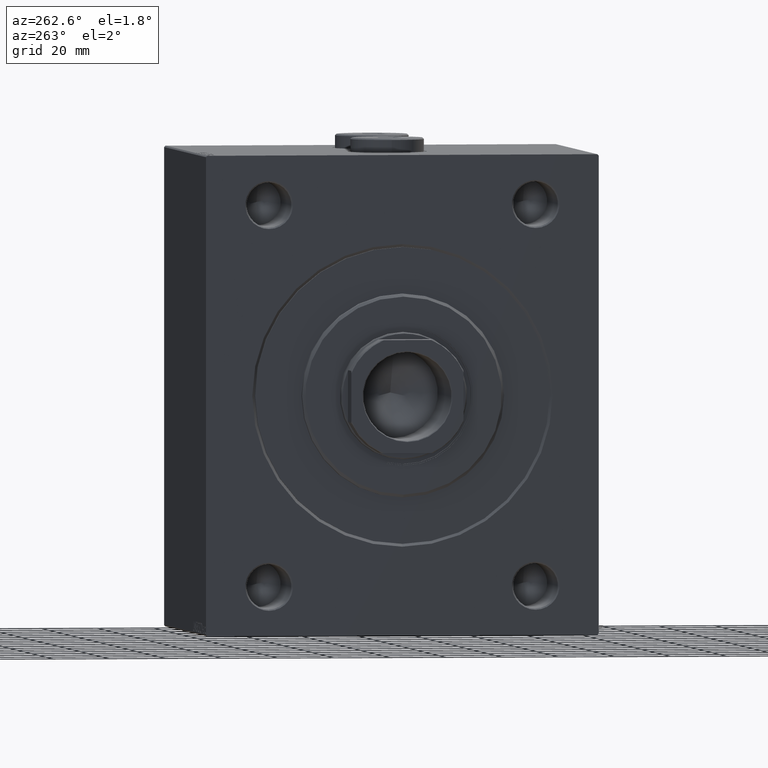
[diagram: clean part render]
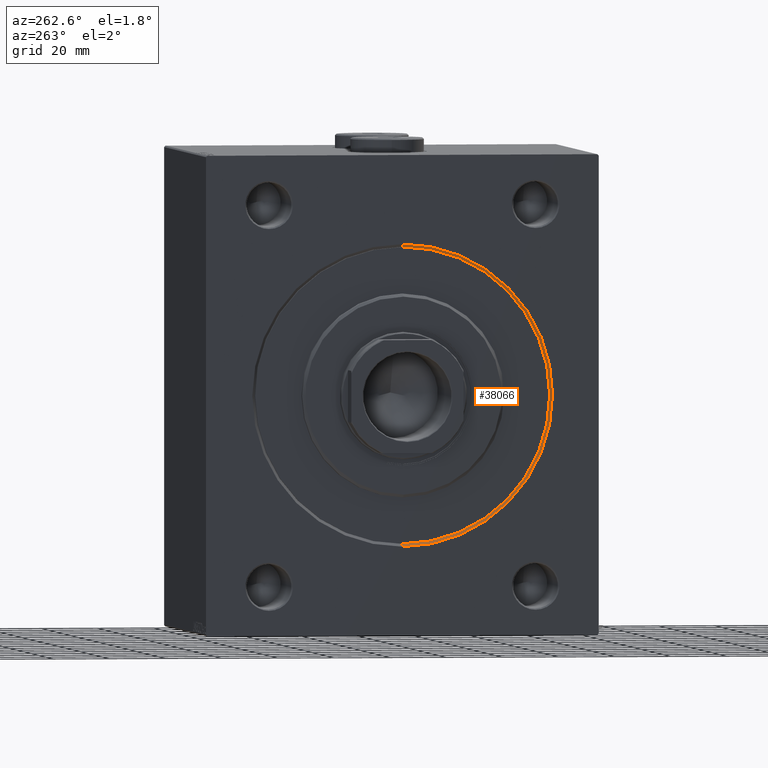
[diagram: same view with one face highlighted and labeled with its STEP entity id]
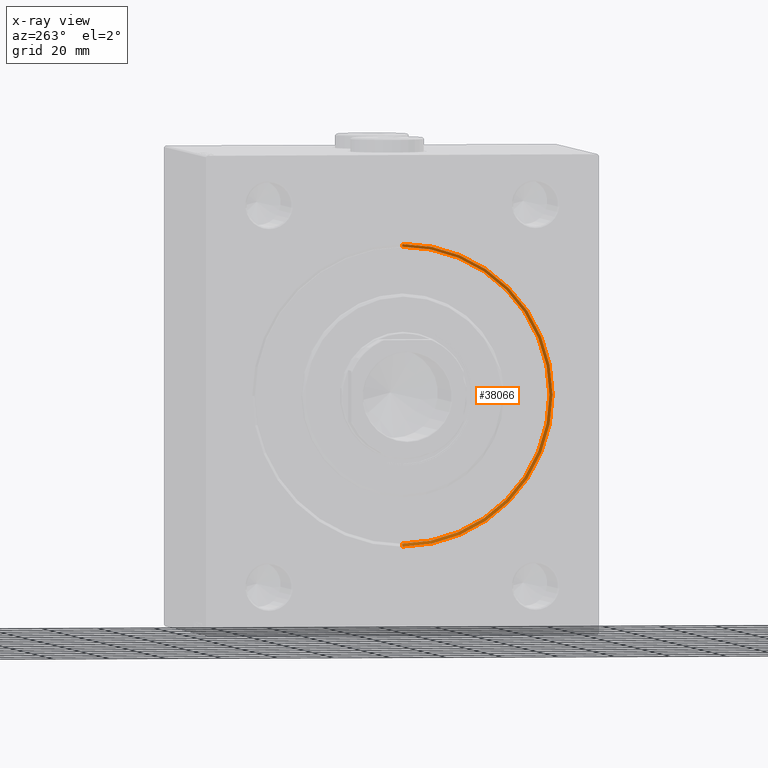
[diagram: x-ray of the same camera — body ghosted, the highlighted face saturated]
A machine part, auxiliary view. The second image highlights one B-rep face of the part: STEP entity #38066.
The next image is the same camera in x-ray: the body ghosted, the highlighted face saturated — about 0% of this face is hidden behind the body in this view.
In plain terms, the highlighted conical surface has half-angle 45 deg.
Its self-contained STEP definition (entity closure, byte-faithful):
#825 = CARTESIAN_POINT ( 'NONE',  ( 0.000000000000000000, 6.551860375438343048E-15, -53.50000000000002842 ) ) ;
#892 = VERTEX_POINT ( 'NONE', #23843 ) ;
#2968 = DIRECTION ( 'NONE',  ( 0.000000000000000000, 0.000000000000000000, 1.000000000000000000 ) ) ;
#4966 = CIRCLE ( 'NONE', #30680, 52.49999999999999289 ) ;
#6183 = CARTESIAN_POINT ( 'NONE',  ( 1.000000000000049516, 0.000000000000000000, 0.000000000000000000 ) ) ;
#7574 = DIRECTION ( 'NONE',  ( 0.000000000000000000, 0.000000000000000000, -1.000000000000000000 ) ) ;
#8322 = VECTOR ( 'NONE', #23293, 1000.000000000000000 ) ;
#9499 = ORIENTED_EDGE ( 'NONE', *, *, #18826, .F. ) ;
#9725 = LINE ( 'NONE', #23520, #8322 ) ;
#9731 = LINE ( 'NONE', #13849, #35516 ) ;
#9894 = DIRECTION ( 'NONE',  ( 1.000000000000000000, 0.000000000000000000, 0.000000000000000000 ) ) ;
#12168 = CARTESIAN_POINT ( 'NONE',  ( 0.000000000000000000, 0.000000000000000000, 53.50000000000002842 ) ) ;
#12670 = VERTEX_POINT ( 'NONE', #825 ) ;
#12822 = ORIENTED_EDGE ( 'NONE', *, *, #16870, .F. ) ;
#13092 = FACE_OUTER_BOUND ( 'NONE', #37597, .T. ) ;
#13849 = CARTESIAN_POINT ( 'NONE',  ( 1.000000000000049516, 6.429395695523603167E-15, -52.49999999999999289 ) ) ;
#15682 = AXIS2_PLACEMENT_3D ( 'NONE', #41417, #9894, #23920 ) ;
#16870 = EDGE_CURVE ( 'NONE', #39570, #35089, #9725, .T. ) ;
#17235 = EDGE_CURVE ( 'NONE', #35089, #12670, #37720, .T. ) ;
#18826 = EDGE_CURVE ( 'NONE', #892, #39570, #4966, .T. ) ;
#20527 = DIRECTION ( 'NONE',  ( -0.7071067811865524577, 8.659560562354873694E-17, -0.7071067811865426878 ) ) ;
#21153 = CARTESIAN_POINT ( 'NONE',  ( 1.000000000000049516, 0.000000000000000000, 0.000000000000000000 ) ) ;
#23293 = DIRECTION ( 'NONE',  ( -0.7071067811865524577, 0.000000000000000000, 0.7071067811865426878 ) ) ;
#23520 = CARTESIAN_POINT ( 'NONE',  ( 1.000000000000049516, 0.000000000000000000, 52.49999999999999289 ) ) ;
#23843 = CARTESIAN_POINT ( 'NONE',  ( 1.000000000000049516, 6.429395695523603167E-15, -52.49999999999999289 ) ) ;
#23920 = DIRECTION ( 'NONE',  ( 0.000000000000000000, 0.000000000000000000, -1.000000000000000000 ) ) ;
#24374 = DIRECTION ( 'NONE',  ( -1.000000000000000000, 0.000000000000000000, 0.000000000000000000 ) ) ;
#27791 = DIRECTION ( 'NONE',  ( -1.000000000000000000, 0.000000000000000000, 0.000000000000000000 ) ) ;
#28971 = ORIENTED_EDGE ( 'NONE', *, *, #35446, .T. ) ;
#30680 = AXIS2_PLACEMENT_3D ( 'NONE', #21153, #24374, #7574 ) ;
#33402 = ORIENTED_EDGE ( 'NONE', *, *, #17235, .F. ) ;
#35089 = VERTEX_POINT ( 'NONE', #12168 ) ;
#35446 = EDGE_CURVE ( 'NONE', #892, #12670, #9731, .T. ) ;
#35516 = VECTOR ( 'NONE', #20527, 1000.000000000000000 ) ;
#37597 = EDGE_LOOP ( 'NONE', ( #9499, #28971, #33402, #12822 ) ) ;
#37720 = CIRCLE ( 'NONE', #15682, 53.50000000000002842 ) ;
#38066 = ADVANCED_FACE ( 'NONE', ( #13092 ), #44440, .F. ) ;
#39271 = AXIS2_PLACEMENT_3D ( 'NONE', #6183, #27791, #2968 ) ;
#39570 = VERTEX_POINT ( 'NONE', #45320 ) ;
#41417 = CARTESIAN_POINT ( 'NONE',  ( 0.000000000000000000, 0.000000000000000000, 0.000000000000000000 ) ) ;
#44440 = CONICAL_SURFACE ( 'NONE', #39271, 52.49999999999999289, 0.7853981633974415066 ) ;
#45320 = CARTESIAN_POINT ( 'NONE',  ( 1.000000000000049516, 0.000000000000000000, 52.49999999999999289 ) ) ;